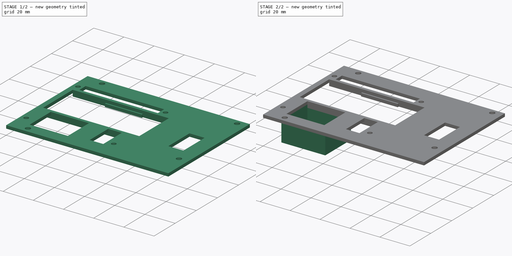
[diagram: build sequence overview — one tinted view per stage of 2, left to right]
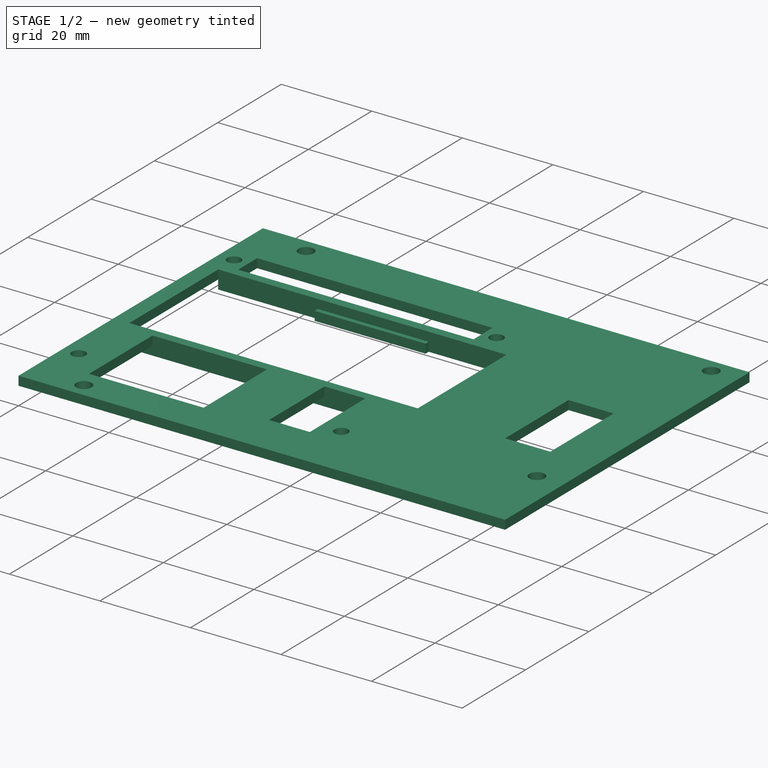
[diagram: stage 1 of 2 — iso view after this stage's code; geometry added in this stage tinted green]
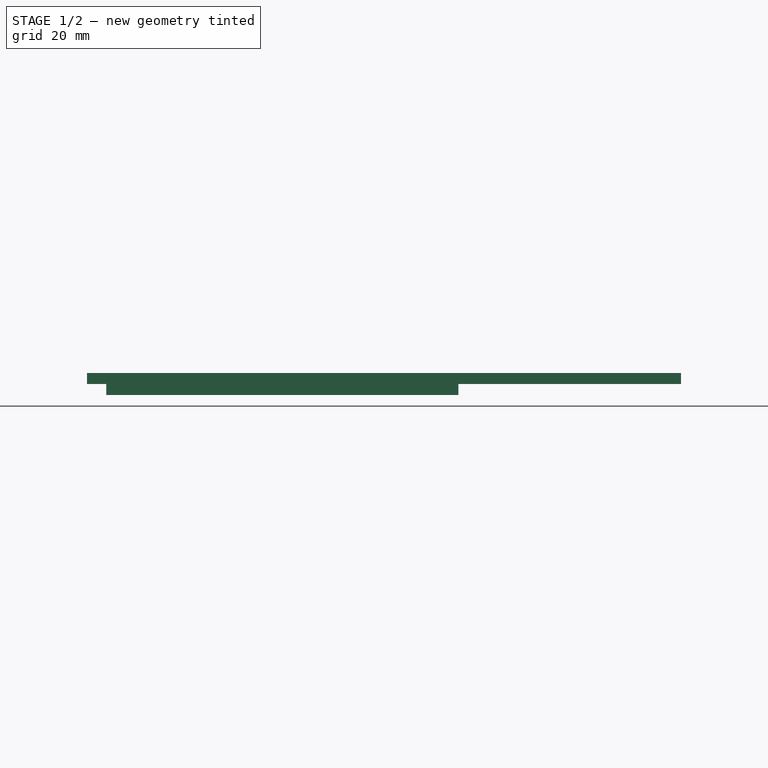
[diagram: stage 1 of 2 — front view after this stage's code; geometry added in this stage tinted green]
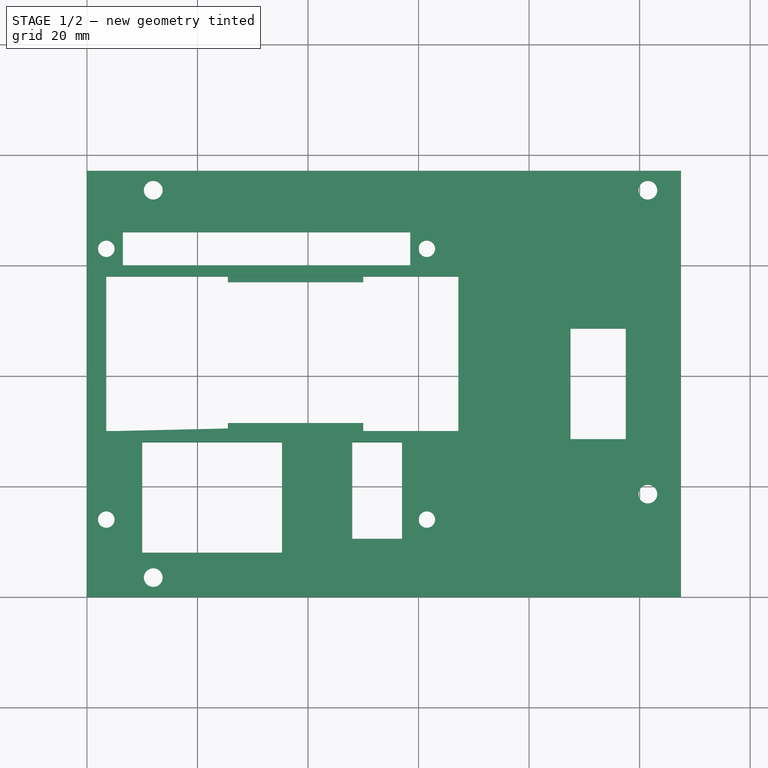
[diagram: stage 1 of 2 — top view after this stage's code; geometry added in this stage tinted green]
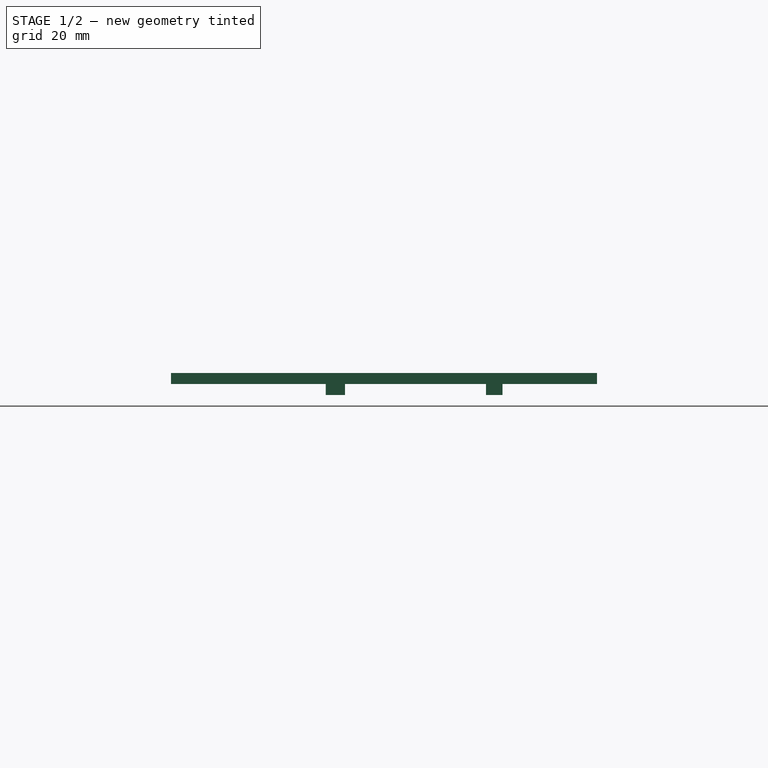
[diagram: stage 1 of 2 — right view after this stage's code; geometry added in this stage tinted green]
FCSTD DOCUMENT  (FreeCAD 1.1R20260325 (Git shallow))
Label: middle_plate
License: All rights reserved
LicenseURL: https://en.wikipedia.org/wiki/All_rights_reserved
objects: Sketcher::SketchObject×4, PartDesign::Pad×4, App::Point×1, PartDesign::Body×1
note: 21 computed .brp shape members not serialized (recipe doc carries the construction recipe); baked Part::Feature solids carry a one-line shape summary decoded from their .brp

FEATURE [App::Point] Origin001  label="原点"
  Role = Origin
FEATURE [Sketcher::SketchObject] Sketch
  ArcFitTolerance = 1e-06
  AttachmentSupport = -> [Origin]
  ExternalTypes = [0]
  FullyConstrained = true
  MakeInternals = false
  MapMode = 5
  _ExternalGeoVersion = 1
  sketch-geometry (36):
    g0: LineSegment StartX=0 StartY=0 StartZ=0 EndX=107.5 EndY=0 EndZ=0
    g1: LineSegment StartX=107.5 StartY=0 StartZ=0 EndX=107.5 EndY=77.1 EndZ=0
    g2: LineSegment StartX=107.5 StartY=77.1 StartZ=0 EndX=0 EndY=77.1 EndZ=0
    g3: LineSegment StartX=0 StartY=77.1 StartZ=0 EndX=0 EndY=0 EndZ=0
    g4: Circle CenterX=12 CenterY=73.6 CenterZ=0 NormalX=0 NormalY=0 NormalZ=1 AngleXU=0 Radius=1.7
    g5: Circle CenterX=12 CenterY=3.5 CenterZ=0 NormalX=0 NormalY=0 NormalZ=1 AngleXU=0 Radius=1.7
    g6: Circle CenterX=101.5 CenterY=73.6 CenterZ=0 NormalX=0 NormalY=0 NormalZ=1 AngleXU=0 Radius=1.7
    g7: Circle CenterX=101.5 CenterY=18.6 CenterZ=0 NormalX=0 NormalY=0 NormalZ=1 AngleXU=0 Radius=1.7
    g8: LineSegment [constr] StartX=3.5 StartY=63 StartZ=0 EndX=3.5 EndY=14 EndZ=0
    g9: LineSegment [constr] StartX=3.5 StartY=14 StartZ=0 EndX=61.5 EndY=14 EndZ=0
    g10: LineSegment [constr] StartX=61.5 StartY=14 StartZ=0 EndX=61.5 EndY=63 EndZ=0
    g11: LineSegment [constr] StartX=61.5 StartY=63 StartZ=0 EndX=3.5 EndY=63 EndZ=0
    g12: Circle CenterX=61.5 CenterY=63 CenterZ=0 NormalX=0 NormalY=0 NormalZ=1 AngleXU=0 Radius=1.5
    g13: Circle CenterX=61.5 CenterY=14 CenterZ=0 NormalX=0 NormalY=0 NormalZ=1 AngleXU=0 Radius=1.5
    g14: Circle CenterX=3.5 CenterY=14 CenterZ=0 NormalX=0 NormalY=0 NormalZ=1 AngleXU=0 Radius=1.5
    g15: Circle CenterX=3.5 CenterY=63 CenterZ=0 NormalX=0 NormalY=0 NormalZ=1 AngleXU=0 Radius=1.5
    g16: LineSegment StartX=3.5 StartY=58 StartZ=0 EndX=3.5 EndY=30 EndZ=0
    g17: LineSegment StartX=3.5 StartY=30 StartZ=0 EndX=67.2 EndY=30 EndZ=0
    g18: LineSegment StartX=67.2 StartY=30 StartZ=0 EndX=67.2 EndY=58 EndZ=0
    g19: LineSegment StartX=67.2 StartY=58 StartZ=0 EndX=3.5 EndY=58 EndZ=0
    g20: LineSegment StartX=10 StartY=28 StartZ=0 EndX=10 EndY=8 EndZ=0
    g21: LineSegment StartX=10 StartY=8 StartZ=0 EndX=35.3 EndY=8 EndZ=0
    g22: LineSegment StartX=35.3 StartY=8 StartZ=0 EndX=35.3 EndY=28 EndZ=0
    g23: LineSegment StartX=35.3 StartY=28 StartZ=0 EndX=10 EndY=28 EndZ=0
    g24: LineSegment StartX=6.5 StartY=66 StartZ=0 EndX=6.5 EndY=60 EndZ=0
    g25: LineSegment StartX=6.5 StartY=60 StartZ=0 EndX=58.5 EndY=60 EndZ=0
    g26: LineSegment StartX=58.5 StartY=60 StartZ=0 EndX=58.5 EndY=66 EndZ=0
    g27: LineSegment StartX=58.5 StartY=66 StartZ=0 EndX=6.5 EndY=66 EndZ=0
    g28: LineSegment StartX=87.5 StartY=48.55 StartZ=0 EndX=87.5 EndY=28.55 EndZ=0
    g29: LineSegment StartX=87.5 StartY=28.55 StartZ=0 EndX=97.5 EndY=28.55 EndZ=0
    g30: LineSegment StartX=97.5 StartY=28.55 StartZ=0 EndX=97.5 EndY=48.55 EndZ=0
    g31: LineSegment StartX=97.5 StartY=48.55 StartZ=0 EndX=87.5 EndY=48.55 EndZ=0
    g32: LineSegment StartX=48 StartY=28 StartZ=0 EndX=48 EndY=10.5 EndZ=0
    g33: LineSegment StartX=48 StartY=10.5 StartZ=0 EndX=57 EndY=10.5 EndZ=0
    g34: LineSegment StartX=57 StartY=10.5 StartZ=0 EndX=57 EndY=28 EndZ=0
    g35: LineSegment StartX=57 StartY=28 StartZ=0 EndX=48 EndY=28 EndZ=0
  constraints (103):
    c: Coincident(g0,g1)
    c: Coincident(g1,g2)
    c: Coincident(g2,g3)
    c: Coincident(g3,g0)
    c: Horizontal(g0)
    c: Horizontal(g2)
    c: Vertical(g1)
    c: Vertical(g3)
    c: Distance(g1,g3) = 107.5
    c: Distance(g0,g2) = 77.1
    c: Coincident(g0,g-1)
    c: Diameter(g4) = 3.4
    c: Equal(g4,g5)
    c: Equal(g4,g7)
    c: Equal(g4,g6)
    c: Distance(g4,g2) = 3.5
    c: Distance(g6,g2) = 3.5
    c: Distance(g5,g0) = 3.5
    c: Distance(g7,g0) = 18.6
    c: DistanceX(g-1,g4) = 12
    c: DistanceX(g-1,g5) = 12
    c: Distance(g6,g1) = 6
    c: Distance(g7,g1) = 6
    c: Coincident(g8,g9)
    c: Coincident(g9,g10)
    c: Coincident(g10,g11)
    c: Coincident(g11,g8)
    c: Vertical(g8)
    c: Vertical(g10)
    c: Horizontal(g9)
    c: Horizontal(g11)
    c: Distance(g8,g10) = 58
    c: Distance(g9,g11) = 49
    c: DistanceY(g-1,g8) = 14
    c: DistanceX(g-1,g8) = 3.5
    c: Diameter(g12) = 3
    c: Coincident(g12,g10)
    c: Coincident(g13,g9)
    c: Coincident(g14,g8)
    c: Coincident(g15,g8)
    c: Equal(g12,g15)
    c: Equal(g12,g13)
    c: Equal(g12,g14)
    c: Coincident(g16,g17)
    c: Coincident(g17,g18)
    c: Coincident(g18,g19)
    c: Coincident(g19,g16)
    c: Vertical(g16)
    c: Vertical(g18)
    c: Horizontal(g17)
    c: Horizontal(g19)
    c: Distance(g16,g18) = 63.7
    c: Distance(g17,g19) = 28
    c: PointOnObject(g16,g8)
    c: Distance(g10,g19) = 5
    c: Coincident(g20,g21)
    c: Coincident(g21,g22)
    c: Coincident(g22,g23)
    c: Coincident(g23,g20)
    c: Vertical(g20)
    c: Vertical(g22)
    c: Horizontal(g21)
    c: Horizontal(g23)
    c: Distance(g20,g22) = 25.3
    c: Distance(g21,g23) = 20
    c: Distance(g20,g3) = 10
    c: Distance(g20,g17) = 2
    c: Coincident(g24,g25)
    c: Coincident(g25,g26)
    c: Coincident(g26,g27)
    c: Coincident(g27,g24)
    c: Vertical(g24)
    c: Vertical(g26)
    c: Horizontal(g25)
    c: Horizontal(g27)
    c: Distance(g24,g26) = 52
    c: Distance(g25,g27) = 6
    c: Distance(g8,g24) = 3
    c: Distance(g26,g11) = 3
    c: Coincident(g28,g29)
    c: Coincident(g29,g30)
    c: Coincident(g30,g31)
    c: Coincident(g31,g28)
    c: Vertical(g28)
    c: Vertical(g30)
    c: Horizontal(g29)
    c: Horizontal(g31)
    c: Distance(g28,g30) = 10
    c: Distance(g29,g31) = 20
    c: Distance(g28,g0) = 28.55
    c: Distance(g30,g1) = 10
    c: Coincident(g32,g33)
    c: Coincident(g33,g34)
    c: Coincident(g34,g35)
    c: Coincident(g35,g32)
    c: Vertical(g32)
    c: Vertical(g34)
    c: Horizontal(g33)
    c: Horizontal(g35)
    c: Distance(g9,g34) = 4.5
    c: Distance(g9,g33) = 3.5
    c: Distance(g34,g17) = 2
    c: DistanceX(g33,g33) = 9
FEATURE [PartDesign::Pad] Pad
  Direction = (0,0,1)
  Length = 2
  Length2 = 10
  Profile = -> Sketch
  ReferenceAxis = -> Sketch [N_Axis]
  Refine = true
  SideType = 0
  Suppressed = false
  Type = 0
  Type2 = 0
FEATURE [Sketcher::SketchObject] Sketch004
  ArcFitTolerance = 1e-06
  ExternalTypes = [0,0,0,0,0]
  FullyConstrained = false
  MakeInternals = false
  MapMode = 5
  Placement = pos=(0,0,0) rot=(1,0,0;3.14159rad)
  _ExternalGeoVersion = 1
  sketch-geometry (20):
    g0: LineSegment StartX=3.5 StartY=-58 StartZ=0 EndX=3.5 EndY=-60 EndZ=0
    g1: LineSegment StartX=3.5 StartY=-60 StartZ=0 EndX=67.2 EndY=-60 EndZ=0
    g2: LineSegment StartX=67.2 StartY=-60 StartZ=0 EndX=67.2 EndY=-58 EndZ=0
    g3: LineSegment StartX=67.2 StartY=-58 StartZ=0 EndX=50 EndY=-58 EndZ=0
    g4: LineSegment StartX=67.2 StartY=-30 StartZ=0 EndX=67.2 EndY=-28 EndZ=0
    g5: LineSegment StartX=67.2 StartY=-28 StartZ=0 EndX=3.5 EndY=-28 EndZ=0
    g6: LineSegment StartX=3.5 StartY=-28 StartZ=0 EndX=3.5 EndY=-30.5 EndZ=0
    g7: LineSegment StartX=3.5 StartY=-30.5 StartZ=0 EndX=25.5 EndY=-30.5 EndZ=0
    g8: LineSegment StartX=25.5 StartY=-30.5 StartZ=0 EndX=25.5 EndY=-31.5 EndZ=0
    g9: LineSegment StartX=25.5 StartY=-31.5 StartZ=0 EndX=50 EndY=-31.5 EndZ=0
    g10: LineSegment StartX=50 StartY=-31.5 StartZ=0 EndX=50 EndY=-30 EndZ=0
    g11: LineSegment StartX=25.5 StartY=-58 StartZ=0 EndX=25.5 EndY=-57 EndZ=0
    g12: LineSegment StartX=25.5 StartY=-57 StartZ=0 EndX=50 EndY=-57 EndZ=0
    g13: LineSegment StartX=50 StartY=-57 StartZ=0 EndX=50 EndY=-58 EndZ=0
    g14: LineSegment [constr] StartX=25.5 StartY=-31.5 StartZ=0 EndX=25.5 EndY=-57 EndZ=0
    g15: LineSegment [constr] StartX=25.5 StartY=-57 StartZ=0 EndX=50 EndY=-57 EndZ=0
    g16: LineSegment [constr] StartX=50 StartY=-57 StartZ=0 EndX=50 EndY=-31.5 EndZ=0
    g17: LineSegment [constr] StartX=50 StartY=-31.5 StartZ=0 EndX=25.5 EndY=-31.5 EndZ=0
    g18: LineSegment StartX=50 StartY=-30 StartZ=0 EndX=67.2 EndY=-30 EndZ=0
    g19: LineSegment StartX=25.5 StartY=-58 StartZ=0 EndX=3.5 EndY=-58 EndZ=0
  constraints (54):
    c: Coincident(g0,g1)
    c: Coincident(g1,g2)
    c: Coincident(g2,g3)
    c: Coincident(g19,g0)
    c: Vertical(g0)
    c: Vertical(g2)
    c: Horizontal(g1)
    c: Coincident(g0,g-3)
    c: PointOnObject(g-4,g1)
    c: PointOnObject(g2,g-5)
    c: Coincident(g4,g5)
    c: Coincident(g5,g6)
    c: Coincident(g6,g7)
    c: Coincident(g18,g4)
    c: Vertical(g4)
    c: Vertical(g6)
    c: Horizontal(g5)
    c: Coincident(g4,g-6)
    c: PointOnObject(g-7,g6)
    c: Distance(g4,g4) = 2
    c: Vertical(g8)
    c: Coincident(g8,g9)
    c: Horizontal(g9)
    c: Coincident(g9,g10)
    c: Vertical(g10)
    c: Vertical(g11)
    c: Coincident(g11,g12)
    c: Horizontal(g12)
    c: Coincident(g12,g13)
    c: Vertical(g13)
    c: Distance(g8,g8) = 1
    c: Equal(g8,g11)
    c: Coincident(g14,g15)
    c: Coincident(g15,g16)
    c: Coincident(g16,g17)
    c: Coincident(g17,g14)
    c: Vertical(g14)
    c: Vertical(g16)
    c: Horizontal(g15)
    c: Horizontal(g17)
    c: Coincident(g14,g8)
    c: Coincident(g15,g12)
    c: Distance(g8,g-7) = 22
    c: PointOnObject(g16,g10)
    c: PointOnObject(g14,g11)
    c: Distance(g9,g-5) = 17.2
    c: Horizontal(g18)
    c: Coincident(g10,g18)
    c: Horizontal(g7)
    c: Coincident(g8,g7)
    c: Horizontal(g3)
    c: Horizontal(g19)
    c: Coincident(g11,g19)
    c: Coincident(g13,g3)
FEATURE [PartDesign::Pad] Pad003
  BaseFeature = -> Pad
  Direction = (0,-1e-16,-1)
  Length = 2
  Length2 = 10
  Profile = -> Sketch004
  ReferenceAxis = -> Sketch004 [N_Axis]
  Refine = true
  SideType = 0
  Suppressed = false
  Type = 0
  Type2 = 0
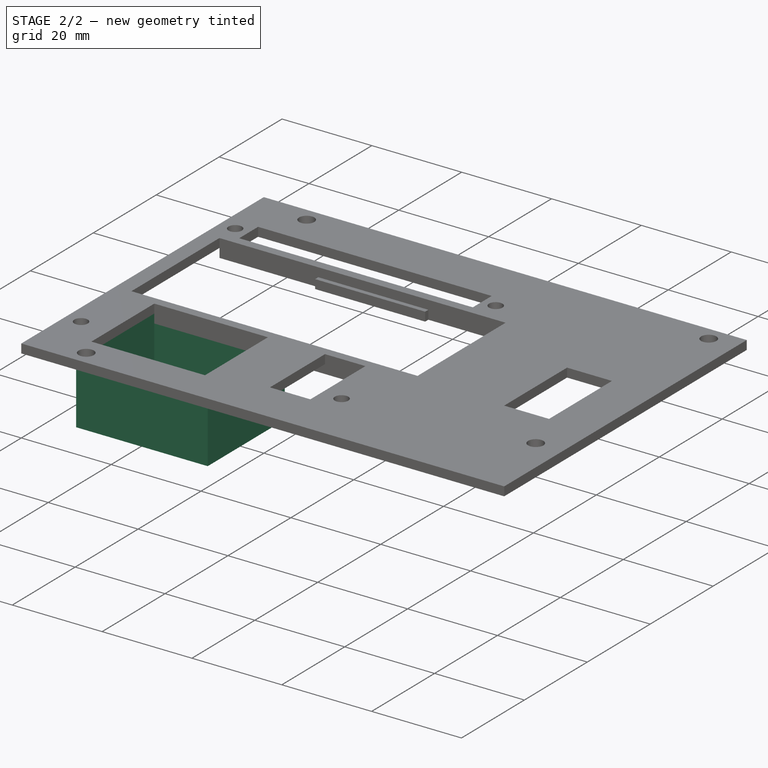
[diagram: stage 2 of 2 — iso view after this stage's code; geometry added in this stage tinted green]
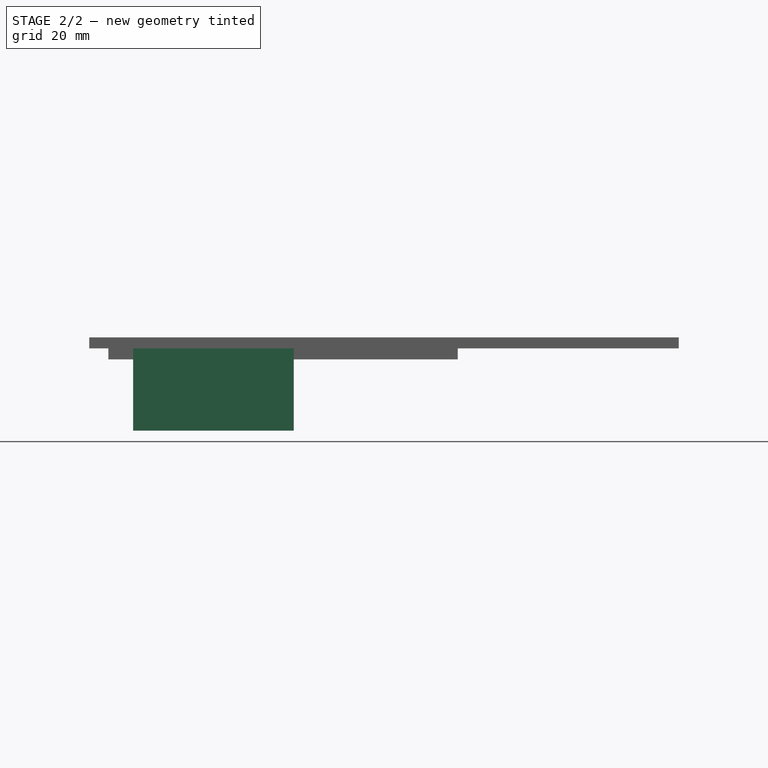
[diagram: stage 2 of 2 — front view after this stage's code; geometry added in this stage tinted green]
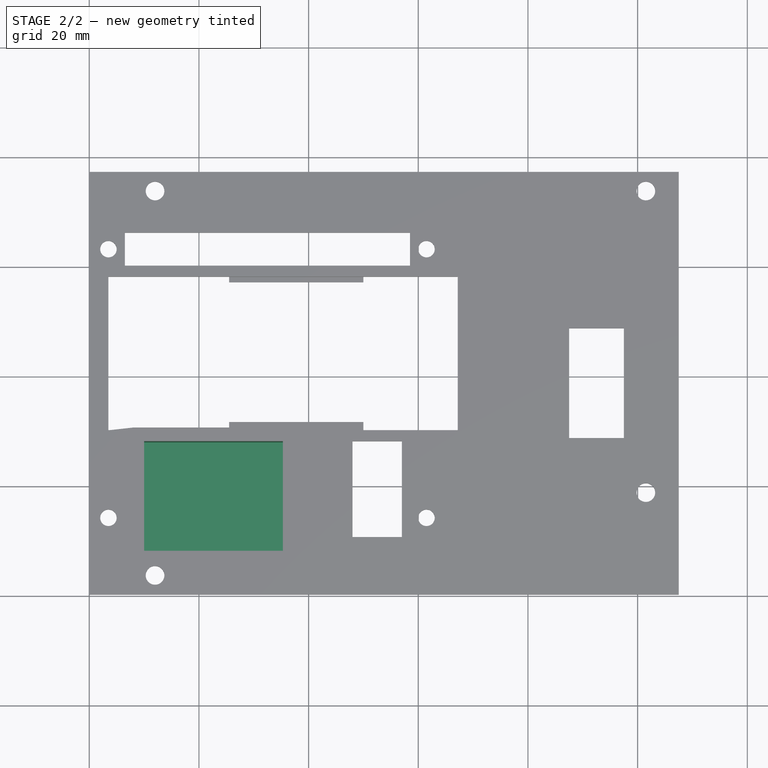
[diagram: stage 2 of 2 — top view after this stage's code; geometry added in this stage tinted green]
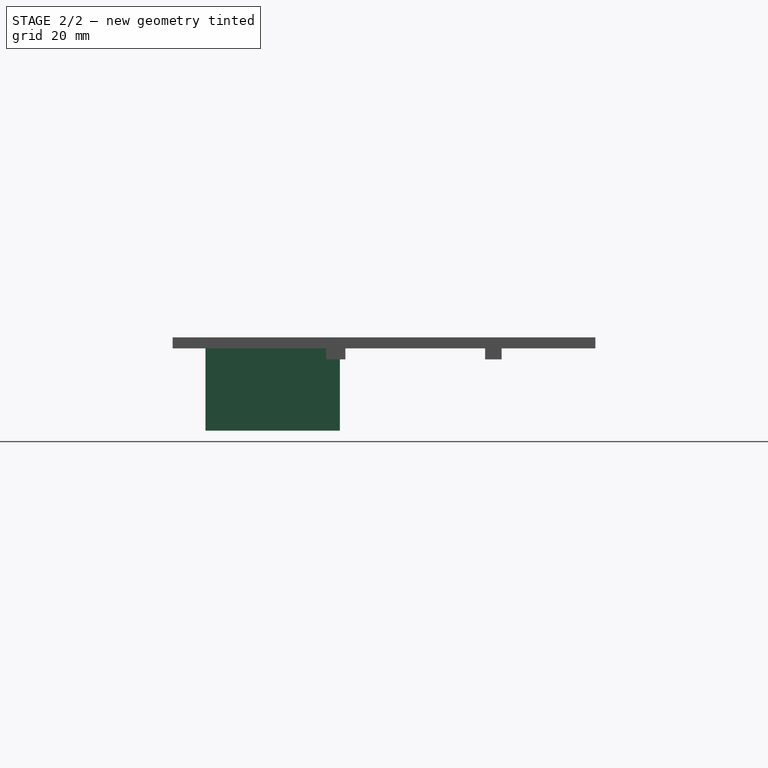
[diagram: stage 2 of 2 — right view after this stage's code; geometry added in this stage tinted green]
FEATURE [Sketcher::SketchObject] Sketch005
  ArcFitTolerance = 1e-06
  AttachmentSupport = -> [Pad003]
  ExternalGeometry = -> [Pad003]
  ExternalTypes = [0,0,0]
  FullyConstrained = true
  MakeInternals = false
  MapMode = 5
  Placement = pos=(0,0,0) rot=(1,0,0;3.14159rad)
  _ExternalGeoVersion = 1
  sketch-geometry (8):
    g0: LineSegment StartX=8 StartY=-30.5 StartZ=0 EndX=37.3 EndY=-30.5 EndZ=0
    g1: LineSegment StartX=37.3 StartY=-30.5 StartZ=0 EndX=37.3 EndY=-6 EndZ=0
    g2: LineSegment StartX=37.3 StartY=-6 StartZ=0 EndX=8 EndY=-6 EndZ=0
    g3: LineSegment StartX=8 StartY=-6 StartZ=0 EndX=8 EndY=-30.5 EndZ=0
    g4: LineSegment StartX=10 StartY=-8 StartZ=0 EndX=10 EndY=-28 EndZ=0
    g5: LineSegment StartX=10 StartY=-28 StartZ=0 EndX=35.3 EndY=-28 EndZ=0
    g6: LineSegment StartX=35.3 StartY=-28 StartZ=0 EndX=35.3 EndY=-8 EndZ=0
    g7: LineSegment StartX=35.3 StartY=-8 StartZ=0 EndX=10 EndY=-8 EndZ=0
  constraints (22):
    c: Coincident(g0,g1)
    c: Coincident(g1,g2)
    c: Coincident(g2,g3)
    c: Coincident(g3,g0)
    c: Horizontal(g0)
    c: Horizontal(g2)
    c: Vertical(g1)
    c: Vertical(g3)
    c: PointOnObject(g0,g-3)
    c: Coincident(g4,g5)
    c: Coincident(g5,g6)
    c: Coincident(g6,g7)
    c: Coincident(g7,g4)
    c: Vertical(g4)
    c: Vertical(g6)
    c: Horizontal(g5)
    c: Horizontal(g7)
    c: Coincident(g4,g-5)
    c: Coincident(g5,g-4)
    c: Distance(g6,g1) = 2
    c: Distance(g6,g2) = 2
    c: Distance(g4,g3) = 2
FEATURE [PartDesign::Pad] Pad004
  BaseFeature = -> Pad003
  Direction = (0,0,-1)
  Length = 13
  Length2 = 10
  Profile = -> Sketch005
  ReferenceAxis = -> Sketch005 [N_Axis]
  Refine = true
  SideType = 0
  Suppressed = false
  Type = 0
  Type2 = 0
FEATURE [Sketcher::SketchObject] Sketch006
  ArcFitTolerance = 1e-06
  AttachmentSupport = -> [Pad004]
  ExternalGeometry = -> [Pad004]
  ExternalTypes = [0,0]
  FullyConstrained = true
  MakeInternals = false
  MapMode = 5
  Placement = pos=(0,0,-13) rot=(1,0,0;3.14159rad)
  _ExternalGeoVersion = 1
  sketch-geometry (4):
    g0: LineSegment StartX=8 StartY=-6 StartZ=0 EndX=8 EndY=-30.5 EndZ=0
    g1: LineSegment StartX=8 StartY=-30.5 StartZ=0 EndX=37.3 EndY=-30.5 EndZ=0
    g2: LineSegment StartX=37.3 StartY=-30.5 StartZ=0 EndX=37.3 EndY=-6 EndZ=0
    g3: LineSegment StartX=37.3 StartY=-6 StartZ=0 EndX=8 EndY=-6 EndZ=0
  constraints (10):
    c: Coincident(g0,g1)
    c: Coincident(g1,g2)
    c: Coincident(g2,g3)
    c: Coincident(g3,g0)
    c: Vertical(g0)
    c: Vertical(g2)
    c: Horizontal(g1)
    c: Horizontal(g3)
    c: Coincident(g0,g-4)
    c: Coincident(g1,g-3)
FEATURE [PartDesign::Pad] Pad005
  BaseFeature = -> Pad004
  Direction = (0,0,-1)
  Length = 2
  Length2 = 10
  Profile = -> Sketch006
  ReferenceAxis = -> Sketch006 [N_Axis]
  Refine = true
  SideType = 0
  Suppressed = false
  Type = 0
  Type2 = 0
FEATURE [PartDesign::Body] Body
  AllowCompound = true
  Group = -> [Sketch,Pad,Sketch004,Pad003,Sketch005,Pad004,Sketch006,Pad005]
  Origin = -> Origin
  Tip = -> Pad005
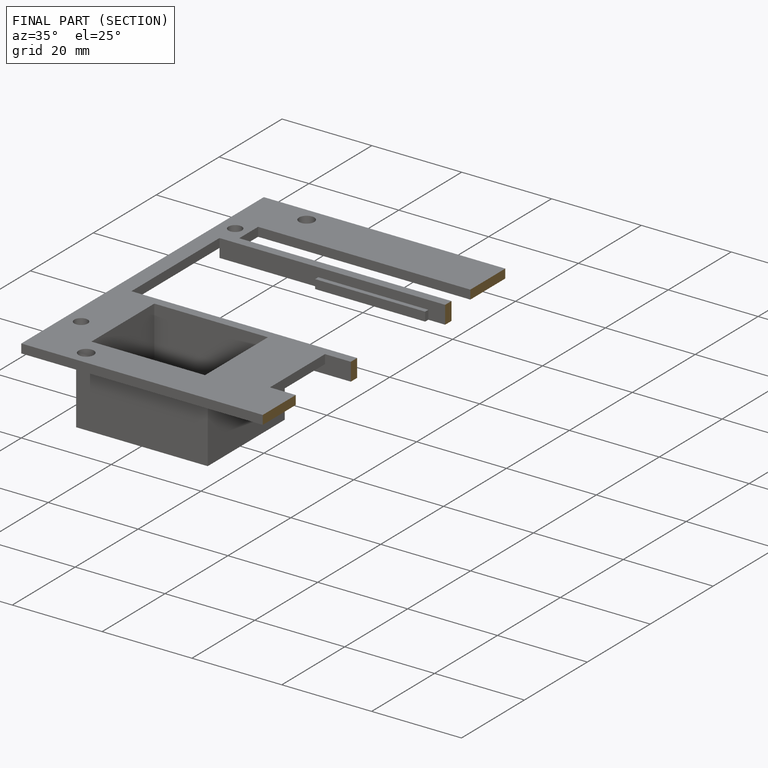
[diagram: finished part — half-section view (interior)]
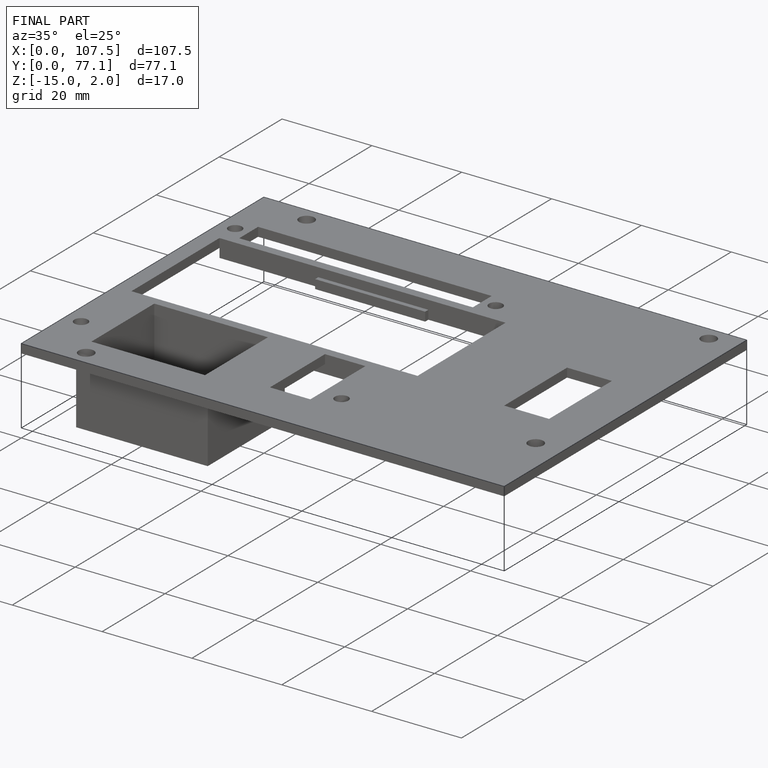
[diagram: finished part — iso view with bounding-box wireframe]
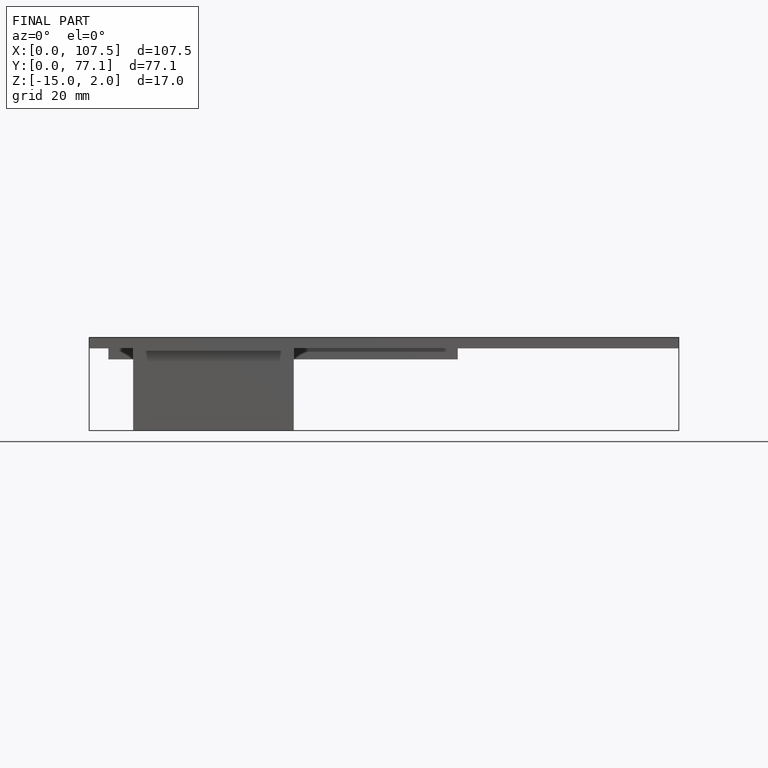
[diagram: finished part — front view with bounding-box wireframe]
